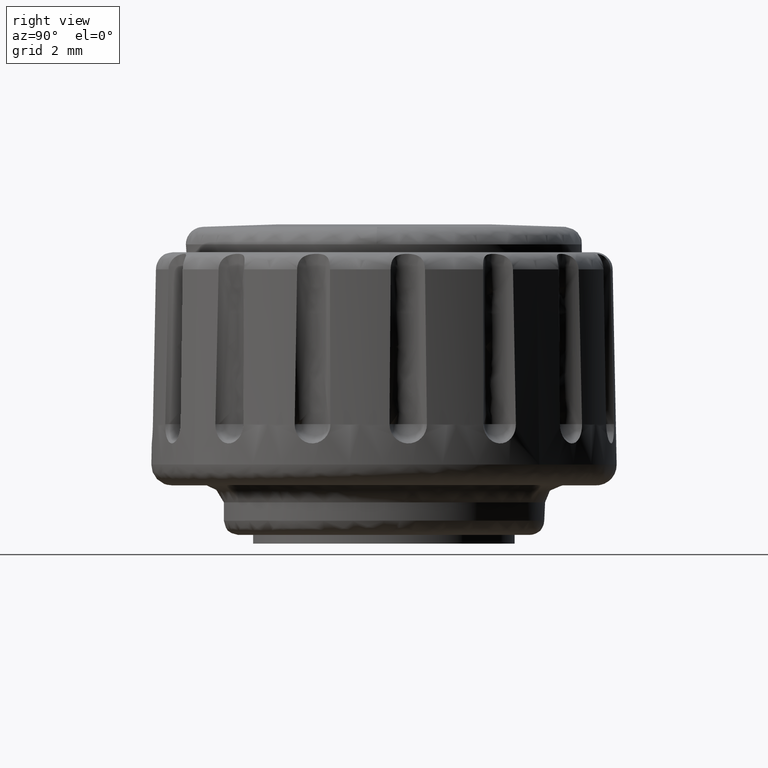
[diagram: clean part render]
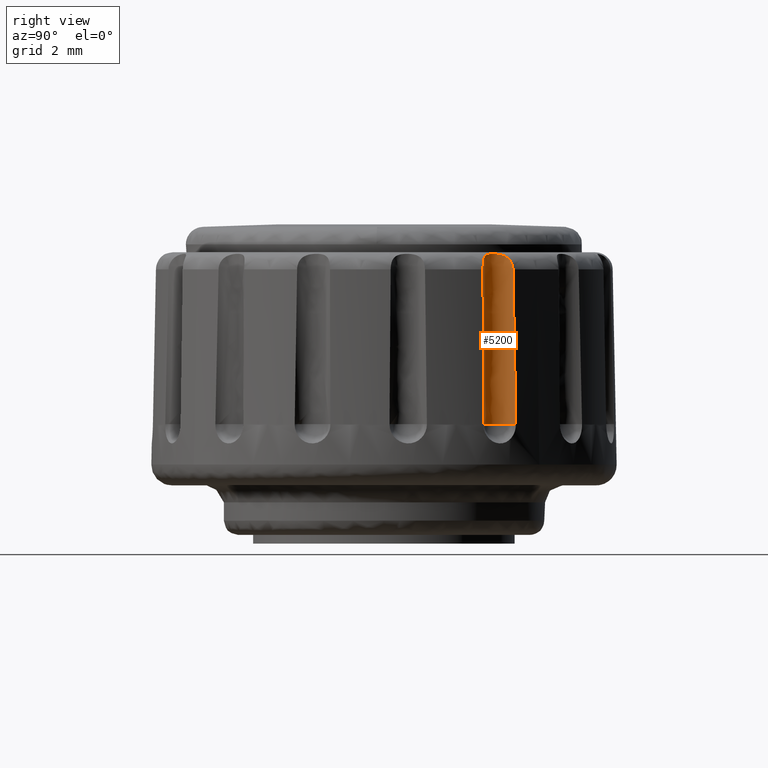
[diagram: same view with one face highlighted and labeled with its STEP entity id]
A machine part, right view. The second image highlights one B-rep face of the part: STEP entity #5200.
In plain terms, the highlighted face is a freeform B-spline surface patch.
Its self-contained STEP definition (entity closure, byte-faithful):
#2555=CARTESIAN_POINT('',(6.482010142788901,4.426110639696080,9.412215999999900));
#2556=VERTEX_POINT('',#2555);
#2570=CARTESIAN_POINT('',(6.545281024942820,4.525116520533169,4.099998000000050));
#2571=VERTEX_POINT('',#2570);
#2572=CARTESIAN_POINT('',(6.545281024942813,4.525116520533172,4.099998000000050));
#2573=CARTESIAN_POINT('',(6.522253511770654,4.494992724410557,5.870766696366896));
#2574=CARTESIAN_POINT('',(6.501026040603749,4.462228163196614,7.641511528857083));
#2575=CARTESIAN_POINT('',(6.482010142788901,4.426110639696080,9.412215999999900));
#2576=QUASI_UNIFORM_CURVE('',3,(#2572,#2573,#2574,#2575),.UNSPECIFIED.,.F.,.U.);
#2577=EDGE_CURVE('',#2571,#2556,#2576,.T.);
#2579=CARTESIAN_POINT('',(7.191506374337780,3.405821382242150,4.099997999999999));
#2580=VERTEX_POINT('',#2579);
#2628=CARTESIAN_POINT('',(7.074129325331851,3.400530131395555,9.412215999999900));
#2629=VERTEX_POINT('',#2628);
#2630=CARTESIAN_POINT('',(7.074129325331841,3.400530131395556,9.412215999999900));
#2631=CARTESIAN_POINT('',(7.114915962977499,3.398939620389982,7.641511708373157));
#2632=CARTESIAN_POINT('',(7.153904647757123,3.400940869261613,5.870766568932622));
#2633=CARTESIAN_POINT('',(7.191506374337783,3.405821382242149,4.099997999999999));
#2634=QUASI_UNIFORM_CURVE('',3,(#2630,#2631,#2632,#2633),.UNSPECIFIED.,.F.,.U.);
#2635=EDGE_CURVE('',#2629,#2580,#2634,.T.);
#3654=CARTESIAN_POINT('',(6.482010142788903,4.426110639696085,9.412215999999901));
#3655=CARTESIAN_POINT('',(6.481562312190985,4.425260060233469,9.453916978650057));
#3656=CARTESIAN_POINT('',(6.478825490045807,4.420162378447508,9.494705356962381));
#3657=CARTESIAN_POINT('',(6.471809163877285,4.405998412010201,9.554538196299596));
#3658=CARTESIAN_POINT('',(6.468966009681444,4.400130267479691,9.574371121964862));
#3659=CARTESIAN_POINT('',(6.462529368794649,4.386173399317736,9.612979769021209));
#3660=CARTESIAN_POINT('',(6.455395325381204,4.370109700233718,9.650306229437662));
#3661=CARTESIAN_POINT('',(6.447349558743116,4.349711265213628,9.685106089512376));
#3662=CARTESIAN_POINT('',(6.439123144746449,4.326995675797720,9.718620688036369));
#3663=CARTESIAN_POINT('',(6.434889120848323,4.314369489779508,9.734842281239377));
#3664=CARTESIAN_POINT('',(6.422737580990151,4.273799311015933,9.780309983706946));
#3665=CARTESIAN_POINT('',(6.415310664116266,4.243100838555000,9.806636376722524));
#3666=CARTESIAN_POINT('',(6.407217417173983,4.191670654085585,9.840786535082374));
#3667=CARTESIAN_POINT('',(6.405047781827621,4.173651863194812,9.851235461969329));
#3668=CARTESIAN_POINT('',(6.402138215484778,4.136932943756942,9.869958542599813));
#3669=CARTESIAN_POINT('',(6.401375925788222,4.118110164900845,9.878318822856286));
#3670=CARTESIAN_POINT('',(6.401467960020995,4.060424729297188,9.900807544248762));
#3671=CARTESIAN_POINT('',(6.404809673756259,4.020115209901824,9.912355600197692));
#3672=CARTESIAN_POINT('',(6.415151097445732,3.960494205596257,9.925299691225186));
#3673=CARTESIAN_POINT('',(6.419476691724560,3.940650932078134,9.928924707190696));
#3674=CARTESIAN_POINT('',(6.429951039257058,3.901082792806886,9.935012990686717));
#3675=CARTESIAN_POINT('',(6.436139099045214,3.881260877222747,9.937483331904756));
#3676=CARTESIAN_POINT('',(6.457199658434369,3.823047565485129,9.943261753614442));
#3677=CARTESIAN_POINT('',(6.474545979494460,3.785747888319517,9.945034975578091));
#3678=CARTESIAN_POINT('',(6.505531276979104,3.732085059577762,9.945033646851440));
#3679=CARTESIAN_POINT('',(6.516757677453800,3.714490866700090,9.944571324500885));
#3680=CARTESIAN_POINT('',(6.540587457104339,3.680579443860932,9.942692276019683));
#3681=CARTESIAN_POINT('',(6.553155554098512,3.664291719514169,9.941283351151190));
#3682=CARTESIAN_POINT('',(6.592733285137359,3.617373488037235,9.935529924069952));
#3683=CARTESIAN_POINT('',(6.621610126669980,3.588673680574182,9.929712001450543));
#3684=CARTESIAN_POINT('',(6.684110223030128,3.536508172072415,9.912308955185338));
#3685=CARTESIAN_POINT('',(6.716761554634962,3.513903120199540,9.900945160164985));
#3686=CARTESIAN_POINT('',(6.766302784189892,3.485123912933033,9.878688632862497));
#3687=CARTESIAN_POINT('',(6.782941148984301,3.476362693510477,9.870385579118487));
#3688=CARTESIAN_POINT('',(6.816279277734760,3.460432855535290,9.851679695909551));
#3689=CARTESIAN_POINT('',(6.833034451757648,3.453255849313717,9.841217255451332));
#3690=CARTESIAN_POINT('',(6.881439832376849,3.434557464603534,9.807307234463062));
#3691=CARTESIAN_POINT('',(6.911771595692912,3.425577136259483,9.781090340372820));
#3692=CARTESIAN_POINT('',(6.953181645165127,3.415724472798575,9.735580212510058));
#3693=CARTESIAN_POINT('',(6.966248877754384,3.413063602272585,9.719398916058831));
#3694=CARTESIAN_POINT('',(6.990112729918895,3.408796072527263,9.685907587720942));
#3695=CARTESIAN_POINT('',(7.001018829524109,3.407162721267363,9.668484688392208));
#3696=CARTESIAN_POINT('',(7.030609232618591,3.403303711013544,9.614197892450914));
#3697=CARTESIAN_POINT('',(7.046163796582861,3.402101444279429,9.575022528015019));
#3698=CARTESIAN_POINT('',(7.067283786595285,3.400750572688478,9.495266763563880));
#3699=CARTESIAN_POINT('',(7.073167565202072,3.400567636082371,9.453970005060404));
#3700=CARTESIAN_POINT('',(7.074129325331870,3.400530131395556,9.412215999999901));
#3701=B_SPLINE_CURVE_WITH_KNOTS('',3,(#3654,#3655,#3656,#3657,#3658,#3659,#3660,#3661,#3662,#3663,#3664,#3665,#3666,#3667,#3668,#3669,#3670,#3671,#3672,#3673,#3674,#3675,#3676,#3677,#3678,#3679,#3680,#3681,#3682,#3683,#3684,#3685,#3686,#3687,#3688,#3689,#3690,#3691,#3692,#3693,#3694,#3695,#3696,#3697,#3698,#3699,#3700),.UNSPECIFIED.,.F.,.U.,(4,2,2,1,2,2,2,2,2,2,2,2,2,2,2,2,2,2,2,2,2,2,2,4),(0.0,0.062499999999994,0.093749999999993,0.124999999999991,0.156249999999989,0.187499999999988,0.249999999999985,0.281249999999985,0.312499999999985,0.374999999999986,0.406249999999987,0.437499999999988,0.499999999999990,0.531249999999991,0.562499999999993,0.624999999999995,0.687499999999997,0.718749999999997,0.749999999999998,0.812499999999999,0.843749999999999,0.874999999999999,0.937499999999999,1.0),.UNSPECIFIED.);
#3702=EDGE_CURVE('',#2556,#2629,#3701,.T.);
#4671=CARTESIAN_POINT('',(6.545281024942815,4.525116520533173,4.099998000000050));
#4672=CARTESIAN_POINT('',(6.261787436017305,4.154260014621569,4.099998000000050));
#4673=CARTESIAN_POINT('',(6.495187930307073,3.749998500000004,4.099998000000050));
#4674=CARTESIAN_POINT('',(6.728588424596841,3.345736985378438,4.099998000000050));
#4675=CARTESIAN_POINT('',(7.191506374337780,3.405821382242150,4.099997999999999));
#4683=(BOUNDED_CURVE()B_SPLINE_CURVE(2,(#4671,#4672,#4673,#4674,#4675),.UNSPECIFIED.,.F.,.U.)B_SPLINE_CURVE_WITH_KNOTS((3,2,3),(0.0,0.500000000000000,1.0),.UNSPECIFIED.)CURVE()GEOMETRIC_REPRESENTATION_ITEM()RATIONAL_B_SPLINE_CURVE((1.0,0.831976603905544,1.0,0.831976603905544,1.0))REPRESENTATION_ITEM(''));
#4684=EDGE_CURVE('',#2571,#2580,#4683,.T.);
#5176=CARTESIAN_POINT('',(6.549012007964055,4.529953375173055,10.091159992344210));
#5177=CARTESIAN_POINT('',(6.549012007964055,4.529953375173055,3.950218950191394));
#5178=CARTESIAN_POINT('',(6.253512209199685,4.150303700080571,10.091159992344213));
#5179=CARTESIAN_POINT('',(6.253512209199685,4.150303700080571,3.950218950191394));
#5180=CARTESIAN_POINT('',(6.502048057817814,3.738376596311858,10.091159992344210));
#5181=CARTESIAN_POINT('',(6.502048057817814,3.738376596311858,3.950218950191394));
#5182=CARTESIAN_POINT('',(6.750583906435944,3.326449492543148,10.091159992344213));
#5183=CARTESIAN_POINT('',(6.750583906435944,3.326449492543148,3.950218950191394));
#5184=CARTESIAN_POINT('',(7.224218270115875,3.410856224556177,10.091159992344210));
#5185=CARTESIAN_POINT('',(7.224218270115875,3.410856224556177,3.950218950191394));
#5193=(BOUNDED_SURFACE()B_SPLINE_SURFACE(1,2,((#5176,#5178,#5180,#5182,#5184),(#5177,#5179,#5181,#5183,#5185)),.UNSPECIFIED.,.F.,.F.,.U.)B_SPLINE_SURFACE_WITH_KNOTS((2,2),(3,2,3),(0.0,6.140941042152819),(0.0,1.0,2.0),.UNSPECIFIED.)GEOMETRIC_REPRESENTATION_ITEM()RATIONAL_B_SPLINE_SURFACE(((1.0,0.824126188622016,1.0,0.824126188622016,1.0),(1.0,0.824126188622016,1.0,0.824126188622016,1.0)))REPRESENTATION_ITEM('')SURFACE());
#5194=ORIENTED_EDGE('',*,*,#2635,.T.);
#5195=ORIENTED_EDGE('',*,*,#4684,.F.);
#5196=ORIENTED_EDGE('',*,*,#2577,.T.);
#5197=ORIENTED_EDGE('',*,*,#3702,.T.);
#5198=EDGE_LOOP('',(#5194,#5195,#5196,#5197));
#5199=FACE_OUTER_BOUND('',#5198,.T.);
#5200=ADVANCED_FACE('',(#5199),#5193,.F.);